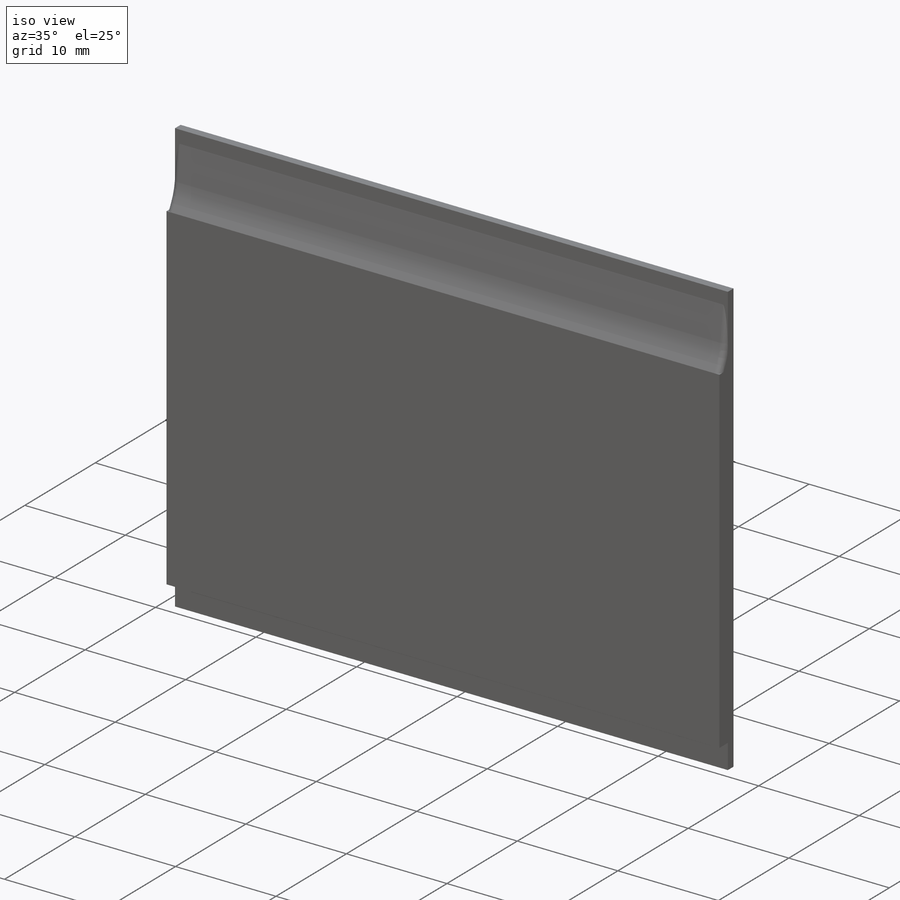
[diagram: iso view]
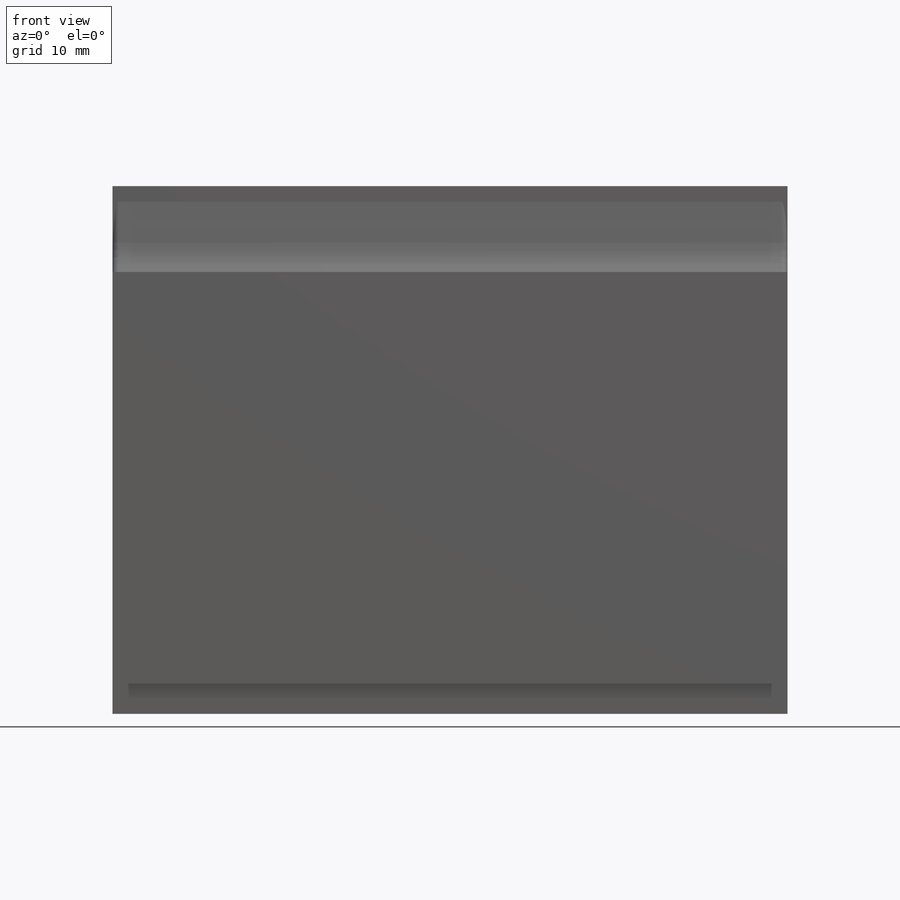
[diagram: front view]
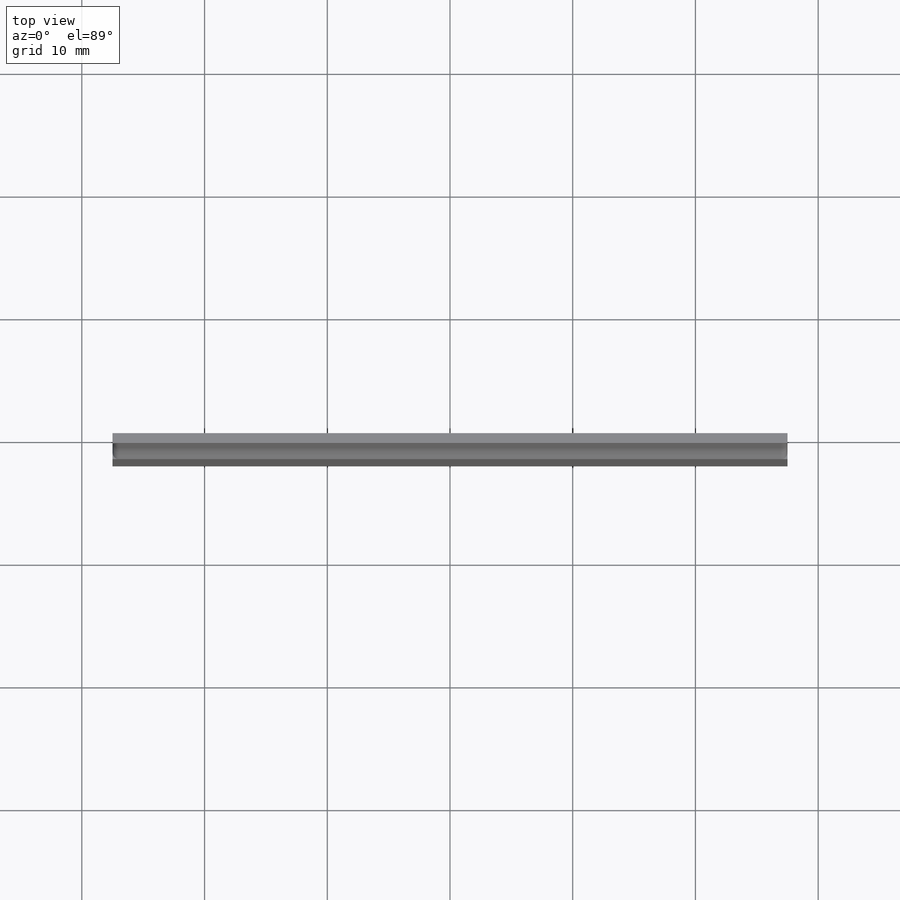
[diagram: top view]
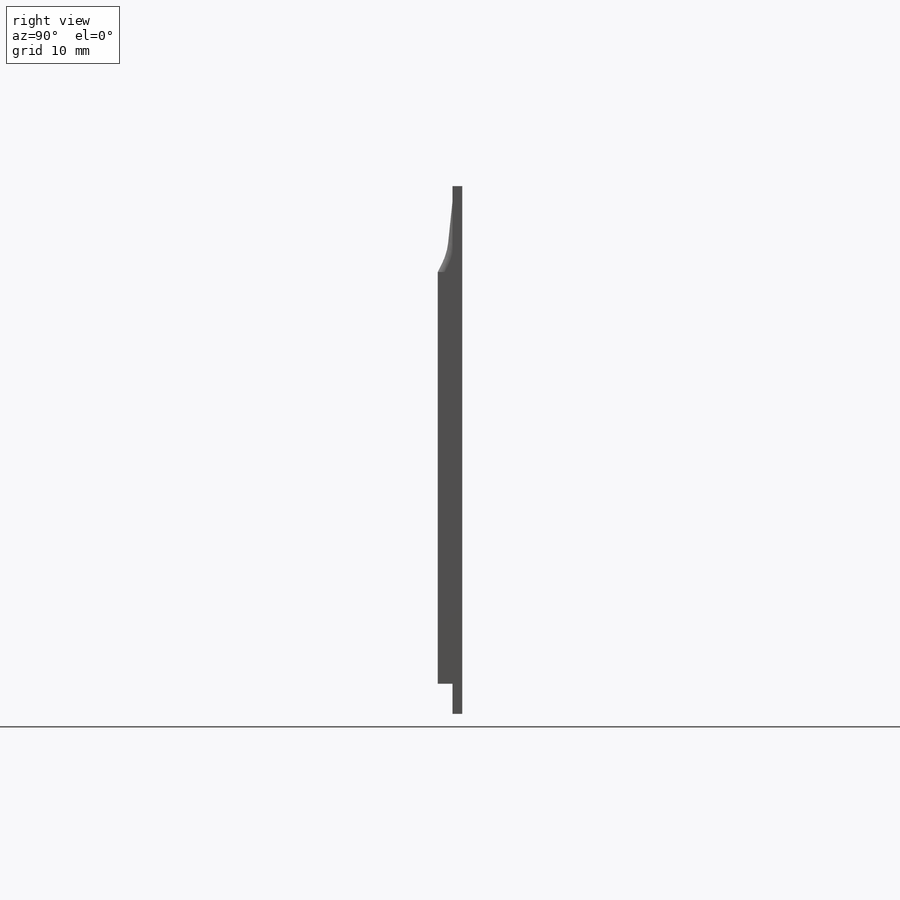
[diagram: right view]
SOLIDWORKS PART (.sldprt)
format: sldprt  version: not decoded by parser v0  size: 275,968 bytes
history: native  units: mm
features: sketch x6, extrude x6, fillet x2, material x1, plane x1 (+13 scaffold rows collapsed)
feature tree (29):
  scaffold x13  (default folders/planes/origin — collapsed)
  material  "Material <not specified>"
  sketch  "Sketch1"  dims[D1=55.0mm D2=43.0mm]
  extrude  "GlassBase"  Depth=0.8mm
  sketch  "Sketch3"  dims[D1=47.99mm D2=27.83mm D3=23.8mm D4=51.0mm D5=31.0mm]
  extrude  "Boss-Extrude3"  Depth=0.05mm
  sketch  "Sketch4"
  extrude  "Boss-Extrude4"  Depth=0.05mm
  sketch  "Sketch5"  dims[c1.D2=0.5mm c1.D1=51.0mm c1.D3=31.0mm c2.D1=0.5mm]
  extrude  "Boss-Extrude5"  Depth=0.05mm
  sketch  "Sketch6"  dims[D1=7.0mm D2=2.45mm]
  extrude  "Boss-Extrude6"  Depth=1.2mm
  plane  "Plane2"
  sketch  "Sketch8"  dims[D1=5.0mm]
  extrude  "Boss-Extrude7"  Depth=55mm
  fillet  "Fillet1"  Radius=0.5mm
  fillet  "Fillet2"  Radius=0.5mm
decode coverage: 13 of 14 modeling features carry decoded parameters
note: suppression state not decoded; provenance and decode notes live in map.json
